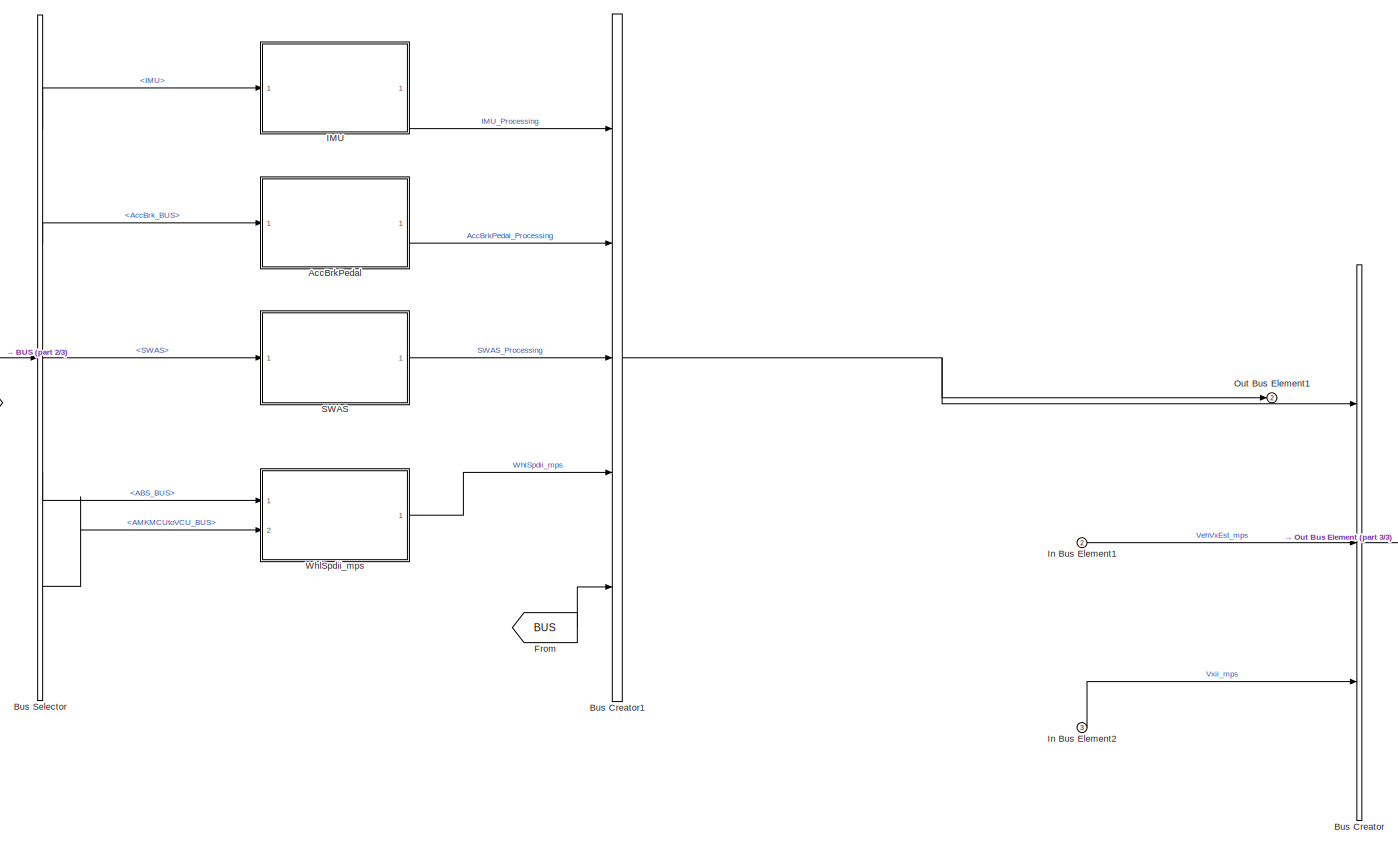
[diagram: root canvas - part 1/3, most of the canvas]
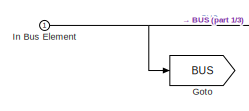
[diagram: root canvas - part 2/3, middle left region]
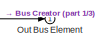
[diagram: root canvas - part 3/3, middle right region]
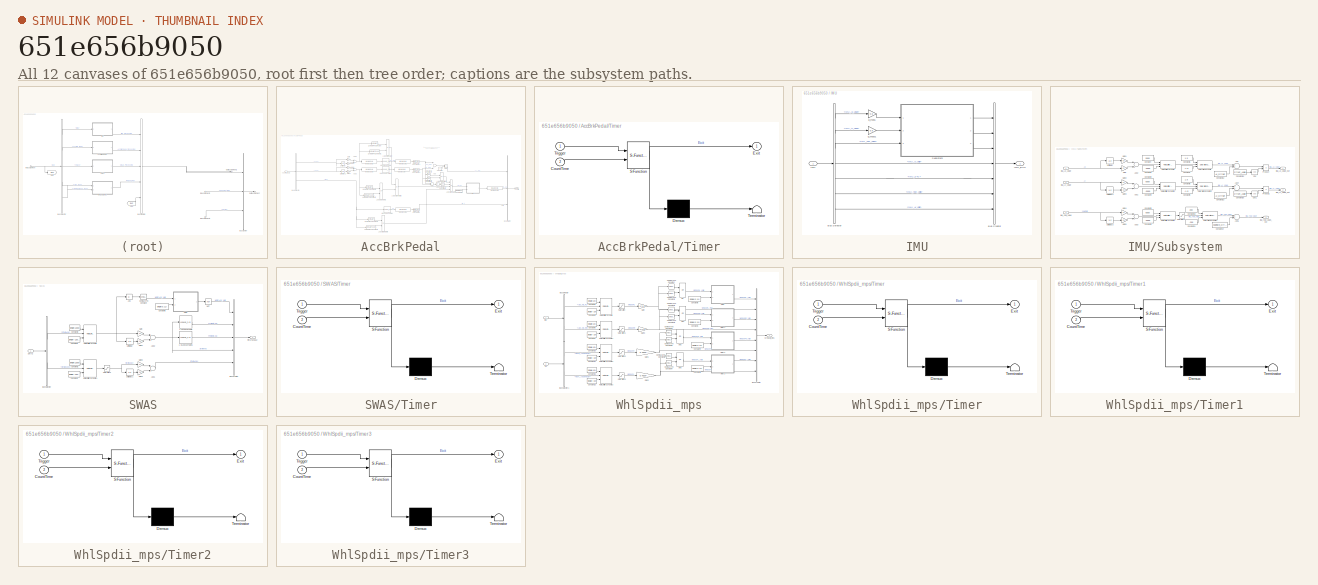
[diagram: thumbnail index - all 12 canvases of the model, root first then tree order]
MODEL slx_651e656b9050
KIND model
CONFIG AbsTol = auto
CONFIG EnableMultiTasking = off
CONFIG FixedStep = auto
CONFIG MaxStep = auto
CONFIG MinStep = auto
CONFIG RelTol = 1e-3
CONFIG SampleTimeConstraint = Unconstrained
CONFIG Solver = VariableStepAuto
CONFIG SolverName = VariableStepAuto
CONFIG StartTime = 0.0
CONFIG StopTime = 10.0
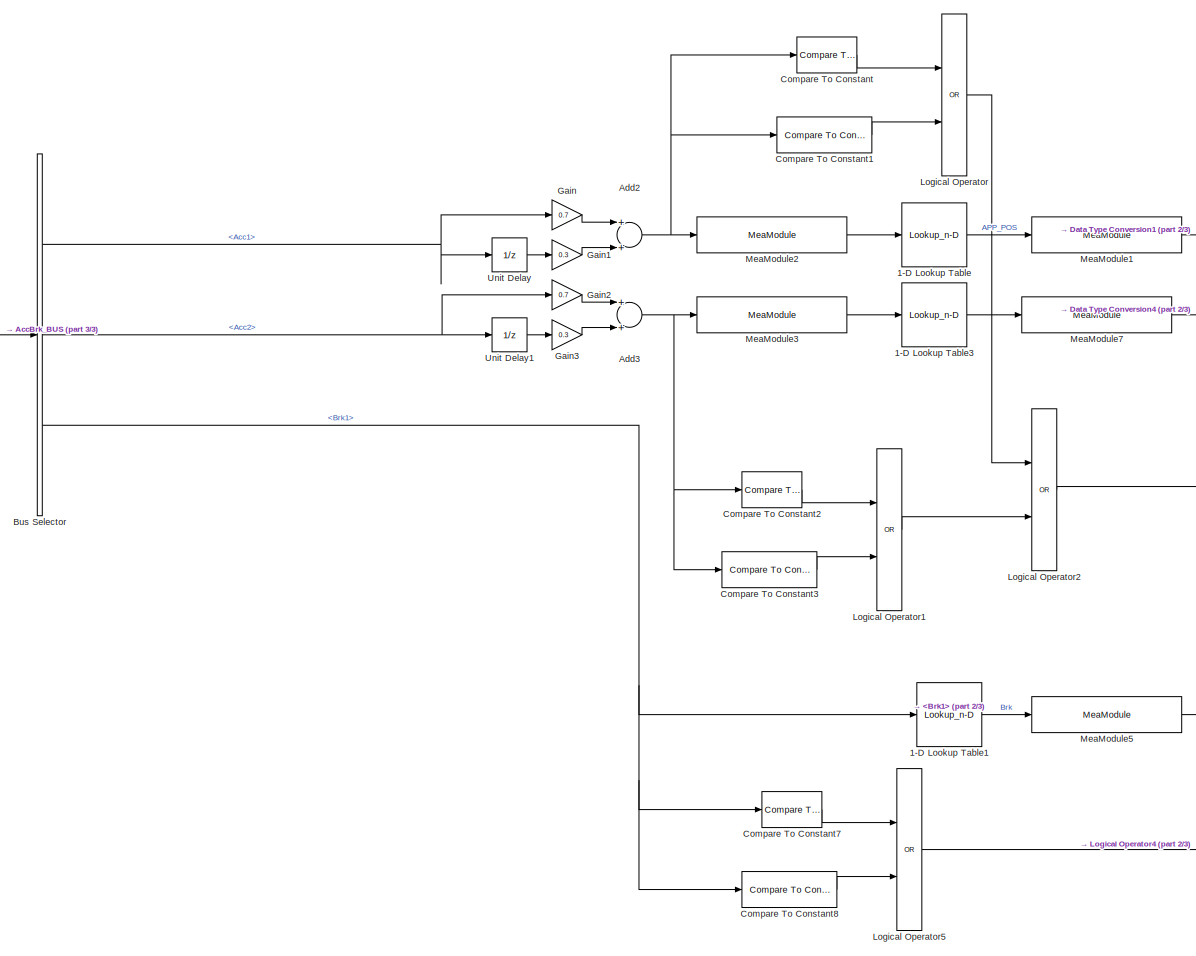
[diagram: AccBrkPedal - part 1/3, left side, full height]
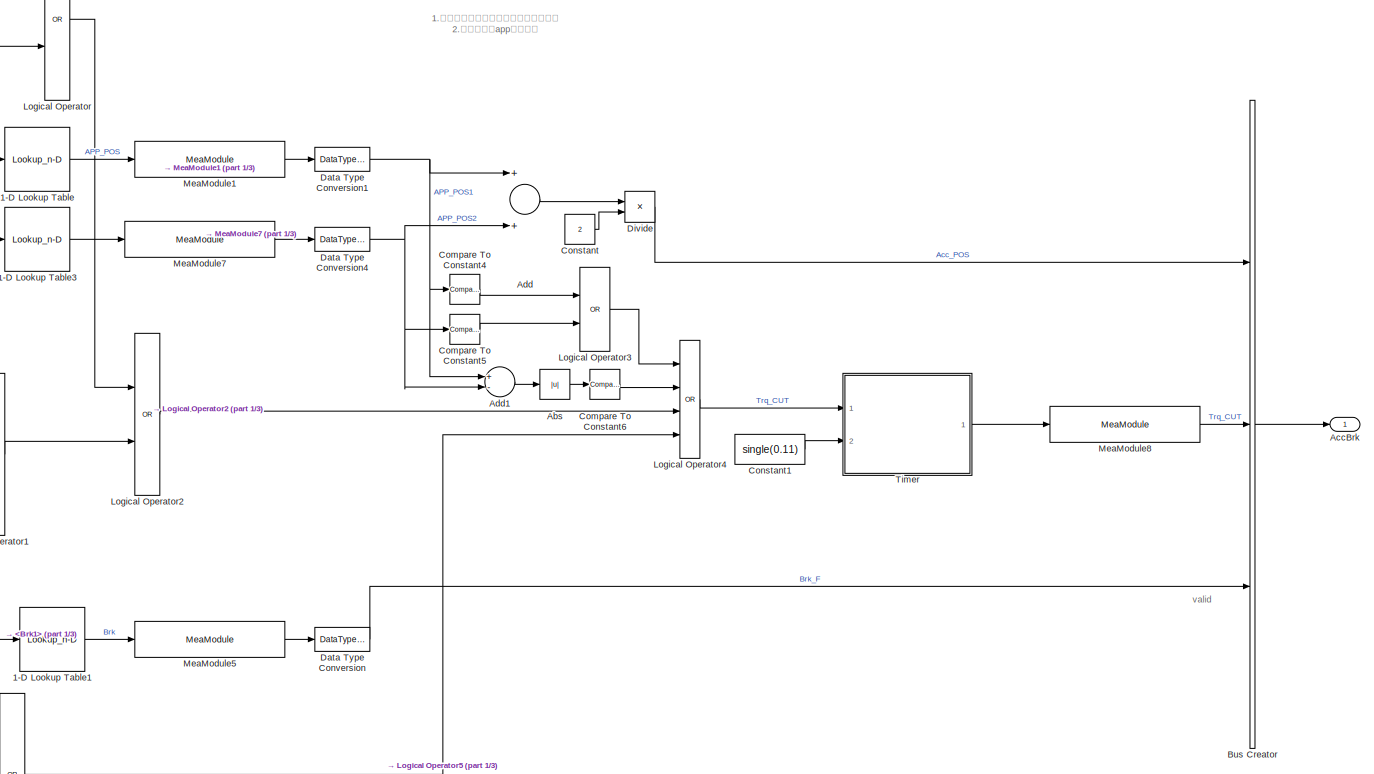
[diagram: AccBrkPedal - part 2/3, right side, full height]
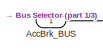
[diagram: AccBrkPedal - part 3/3, middle left region]
BLOCK [SubSystem] AccBrkPedal
  Ports = [1, 1]
  RequestExecContextInheritance = off
BLOCK [Lookup_n-D] AccBrkPedal/1-D Lookup Table
  BreakpointsForDimension1 = single([1330,1590]);
  BreakpointsForDimension1DataTypeStr = single
  ExtrapMethod = Clip
  InternalRulePriority = Speed
  NumberOfTableDimensions = 1
  Ports = [1, 1]
  RndMeth = Simplest
  Table = single([0,100]);
  TableDataTypeStr = single
BLOCK [Lookup_n-D] AccBrkPedal/1-D Lookup Table1
  BreakpointsForDimension1 = single([500,4500]);
  BreakpointsForDimension1DataTypeStr = single
  ExtrapMethod = Clip
  InternalRulePriority = Speed
  NumberOfTableDimensions = 1
  Ports = [1, 1]
  RndMeth = Simplest
  Table = single([0,10000]);
  TableDataTypeStr = single
BLOCK [Lookup_n-D] AccBrkPedal/1-D Lookup Table3
  BreakpointsForDimension1 = single([2324,2600]);
  BreakpointsForDimension1DataTypeStr = single
  ExtrapMethod = Clip
  InternalRulePriority = Speed
  NumberOfTableDimensions = 1
  Ports = [1, 1]
  RndMeth = Simplest
  Table = single([0,100]);
  TableDataTypeStr = single
BLOCK [Abs] AccBrkPedal/Abs
  SaturateOnIntegerOverflow = off
BLOCK [Outport] AccBrkPedal/AccBrk
  IconDisplay = Port number
  VectorParamsAs1DForOutWhenUnconnected = off
BLOCK [Inport] AccBrkPedal/AccBrk_BUS
  IconDisplay = Port number
BLOCK [Sum] AccBrkPedal/Add
  InputSameDT = off
  OutDataTypeStr = Inherit: Inherit via internal rule
  Ports = [2, 1]
  SaturateOnIntegerOverflow = off
BLOCK [Sum] AccBrkPedal/Add1
  InputSameDT = off
  Inputs = +-
  OutDataTypeStr = Inherit: Inherit via internal rule
  Ports = [2, 1]
  SaturateOnIntegerOverflow = off
BLOCK [Sum] AccBrkPedal/Add2
  InputSameDT = off
  OutDataTypeStr = Inherit: Inherit via internal rule
  Ports = [2, 1]
  SaturateOnIntegerOverflow = off
BLOCK [Sum] AccBrkPedal/Add3
  InputSameDT = off
  OutDataTypeStr = Inherit: Inherit via internal rule
  Ports = [2, 1]
  SaturateOnIntegerOverflow = off
BLOCK [BusCreator] AccBrkPedal/Bus Creator
  DisplayOption = bar
  InheritFromInputs = on
  Inputs = 3
  Ports = [3, 1]
BLOCK [BusSelector] AccBrkPedal/Bus Selector
  OutputAsBus = off
  OutputSignals = Acc1,Acc2,Brk1
  Ports = [1, 3]
BLOCK [Reference] AccBrkPedal/Compare To Constant  REF=simulink/Logic and Bit
Operations/Compare
To Constant
  Ports = [1, 1]
  SourceBlock = simulink/Logic and Bit\nOperations/Compare\nTo Constant
  SourceProductBaseCode = SL
  SourceProductName = Simulink
  SourceType = Compare To Constant
BLOCK [Reference] AccBrkPedal/Compare To Constant1  REF=simulink/Logic and Bit
Operations/Compare
To Constant
  Ports = [1, 1]
  SourceBlock = simulink/Logic and Bit\nOperations/Compare\nTo Constant
  SourceProductBaseCode = SL
  SourceProductName = Simulink
  SourceType = Compare To Constant
BLOCK [Reference] AccBrkPedal/Compare To Constant2  REF=simulink/Logic and Bit
Operations/Compare
To Constant
  Ports = [1, 1]
  SourceBlock = simulink/Logic and Bit\nOperations/Compare\nTo Constant
  SourceProductBaseCode = SL
  SourceProductName = Simulink
  SourceType = Compare To Constant
BLOCK [Reference] AccBrkPedal/Compare To Constant3  REF=simulink/Logic and Bit
Operations/Compare
To Constant
  Ports = [1, 1]
  SourceBlock = simulink/Logic and Bit\nOperations/Compare\nTo Constant
  SourceProductBaseCode = SL
  SourceProductName = Simulink
  SourceType = Compare To Constant
BLOCK [Reference] AccBrkPedal/Compare To Constant4  REF=simulink/Logic and Bit
Operations/Compare
To Constant
  Ports = [1, 1]
  SourceBlock = simulink/Logic and Bit\nOperations/Compare\nTo Constant
  SourceProductBaseCode = SL
  SourceProductName = Simulink
  SourceType = Compare To Constant
BLOCK [Reference] AccBrkPedal/Compare To Constant5  REF=simulink/Logic and Bit
Operations/Compare
To Constant
  Ports = [1, 1]
  SourceBlock = simulink/Logic and Bit\nOperations/Compare\nTo Constant
  SourceProductBaseCode = SL
  SourceProductName = Simulink
  SourceType = Compare To Constant
BLOCK [Reference] AccBrkPedal/Compare To Constant6  REF=simulink/Logic and Bit
Operations/Compare
To Constant
  Ports = [1, 1]
  SourceBlock = simulink/Logic and Bit\nOperations/Compare\nTo Constant
  SourceProductBaseCode = SL
  SourceProductName = Simulink
  SourceType = Compare To Constant
BLOCK [Reference] AccBrkPedal/Compare To Constant7  REF=simulink/Logic and Bit
Operations/Compare
To Constant
  Ports = [1, 1]
  SourceBlock = simulink/Logic and Bit\nOperations/Compare\nTo Constant
  SourceProductBaseCode = SL
  SourceProductName = Simulink
  SourceType = Compare To Constant
BLOCK [Reference] AccBrkPedal/Compare To Constant8  REF=simulink/Logic and Bit
Operations/Compare
To Constant
  Ports = [1, 1]
  SourceBlock = simulink/Logic and Bit\nOperations/Compare\nTo Constant
  SourceProductBaseCode = SL
  SourceProductName = Simulink
  SourceType = Compare To Constant
BLOCK [Constant] AccBrkPedal/Constant
  Value = 2
BLOCK [Constant] AccBrkPedal/Constant1
  Value = single(0.11)
BLOCK [DataTypeConversion] AccBrkPedal/Data Type Conversion
  OutDataTypeStr = single
  RndMeth = Floor
  SaturateOnIntegerOverflow = off
BLOCK [DataTypeConversion] AccBrkPedal/Data Type Conversion1
  OutDataTypeStr = single
  RndMeth = Floor
  SaturateOnIntegerOverflow = off
BLOCK [DataTypeConversion] AccBrkPedal/Data Type Conversion4
  OutDataTypeStr = single
  RndMeth = Floor
  SaturateOnIntegerOverflow = off
BLOCK [Product] AccBrkPedal/Divide
  InputSameDT = off
  Inputs = */
  OutDataTypeStr = single
  Ports = [2, 1]
  RndMeth = Floor
  SaturateOnIntegerOverflow = off
BLOCK [Gain] AccBrkPedal/Gain
  Gain = 0.7
  OutDataTypeStr = Inherit: Inherit via internal rule
  ParamDataTypeStr = Inherit: Inherit via internal rule
  SaturateOnIntegerOverflow = off
BLOCK [Gain] AccBrkPedal/Gain1
  Gain = 0.3
  OutDataTypeStr = Inherit: Inherit via internal rule
  ParamDataTypeStr = Inherit: Inherit via internal rule
  SaturateOnIntegerOverflow = off
BLOCK [Gain] AccBrkPedal/Gain2
  Gain = 0.7
  OutDataTypeStr = Inherit: Inherit via internal rule
  ParamDataTypeStr = Inherit: Inherit via internal rule
  SaturateOnIntegerOverflow = off
BLOCK [Gain] AccBrkPedal/Gain3
  Gain = 0.3
  OutDataTypeStr = Inherit: Inherit via internal rule
  ParamDataTypeStr = Inherit: Inherit via internal rule
  SaturateOnIntegerOverflow = off
BLOCK [Logic] AccBrkPedal/Logical Operator
  AllPortsSameDT = off
  Operator = OR
  OutDataTypeStr = boolean
  Ports = [2, 1]
BLOCK [Logic] AccBrkPedal/Logical Operator1
  AllPortsSameDT = off
  Operator = OR
  OutDataTypeStr = boolean
  Ports = [2, 1]
BLOCK [Logic] AccBrkPedal/Logical Operator2
  AllPortsSameDT = off
  Operator = OR
  OutDataTypeStr = boolean
  Ports = [2, 1]
BLOCK [Logic] AccBrkPedal/Logical Operator3
  AllPortsSameDT = off
  Operator = OR
  OutDataTypeStr = boolean
  Ports = [2, 1]
BLOCK [Logic] AccBrkPedal/Logical Operator4
  AllPortsSameDT = off
  Inputs = 4
  Operator = OR
  OutDataTypeStr = boolean
  Ports = [4, 1]
BLOCK [Logic] AccBrkPedal/Logical Operator5
  AllPortsSameDT = off
  Operator = OR
  OutDataTypeStr = boolean
  Ports = [2, 1]
BLOCK [Reference] AccBrkPedal/MeaModule1  REF=ec5744lib/RapidECU_U3/07Calibration/MeaModule
  Ports = [1, 1]
  SourceBlock = ec5744lib/RapidECU_U3/07Calibration/MeaModule
  SourceProductName = ECUCoder for MPC5744
  SourceType = Measurement Module
BLOCK [Reference] AccBrkPedal/MeaModule2  REF=ec5744lib/RapidECU_U3/07Calibration/MeaModule
  Ports = [1, 1]
  SourceBlock = ec5744lib/RapidECU_U3/07Calibration/MeaModule
  SourceProductName = ECUCoder for MPC5744
  SourceType = Measurement Module
BLOCK [Reference] AccBrkPedal/MeaModule3  REF=ec5744lib/RapidECU_U3/07Calibration/MeaModule
  Ports = [1, 1]
  SourceBlock = ec5744lib/RapidECU_U3/07Calibration/MeaModule
  SourceProductName = ECUCoder for MPC5744
  SourceType = Measurement Module
BLOCK [Reference] AccBrkPedal/MeaModule5  REF=ec5744lib/RapidECU_U3/07Calibration/MeaModule
  Ports = [1, 1]
  SourceBlock = ec5744lib/RapidECU_U3/07Calibration/MeaModule
  SourceProductName = ECUCoder for MPC5744
  SourceType = Measurement Module
BLOCK [Reference] AccBrkPedal/MeaModule7  REF=ec5744lib/RapidECU_U3/07Calibration/MeaModule
  Ports = [1, 1]
  SourceBlock = ec5744lib/RapidECU_U3/07Calibration/MeaModule
  SourceProductName = ECUCoder for MPC5744
  SourceType = Measurement Module
BLOCK [Reference] AccBrkPedal/MeaModule8  REF=ec5744lib/RapidECU_U3/07Calibration/MeaModule
  Ports = [1, 1]
  SourceBlock = ec5744lib/RapidECU_U3/07Calibration/MeaModule
  SourceProductName = ECUCoder for MPC5744
  SourceType = Measurement Module
BLOCK [SubSystem] AccBrkPedal/Timer
  ErrorFcn = Stateflow.Translate.translate
  PermitHierarchicalResolution = ExplicitOnly
  Ports = [2, 1]
  RequestExecContextInheritance = off
  SFBlockType = Chart
  TreatAsAtomicUnit = on
BLOCK [Demux] AccBrkPedal/Timer/ Demux 
  Outputs = 1
  Ports = [1, 1]
BLOCK [S-Function] AccBrkPedal/Timer/ SFunction 
  EnableBusSupport = on
  FunctionName = sf_sfun
  Parameters = 0
  PortCounts = [2 2]
  Ports = [2, 2]
  SFcnIsStateOwnerBlock = off
  SFunctionDeploymentMode = off
  Tag = Stateflow S-Function 3
BLOCK [Terminator] AccBrkPedal/Timer/ Terminator 
BLOCK [Inport] AccBrkPedal/Timer/CountTime
  IconDisplay = Port number
  Port = 2
BLOCK [Outport] AccBrkPedal/Timer/Exit
  IconDisplay = Port number
BLOCK [Inport] AccBrkPedal/Timer/Trigger
  IconDisplay = Port number
BLOCK [UnitDelay] AccBrkPedal/Unit Delay
  HasFrameUpgradeWarning = on
  SampleTime = -1
BLOCK [UnitDelay] AccBrkPedal/Unit Delay1
  HasFrameUpgradeWarning = on
  SampleTime = -1
BLOCK [BusCreator] Bus Creator
  DisplayOption = bar
  InheritFromInputs = on
  Inputs = 3
  Ports = [3, 1]
BLOCK [BusCreator] Bus Creator1
  DisplayOption = bar
  InheritFromInputs = on
  Inputs = 5
  Ports = [5, 1]
BLOCK [BusSelector] Bus Selector
  OutputAsBus = off
  OutputSignals = IMU,AccBrk_BUS,SWAS,ABS_BUS,AMKMCUtoVCU_BUS
  Ports = [1, 5]
BLOCK [From] From
  GotoTag = BUS
BLOCK [Goto] Goto
  GotoTag = BUS
BLOCK [SubSystem] IMU
  Ports = [1, 1]
  RequestExecContextInheritance = off
BLOCK [BusCreator] IMU/Bus Creator
  DisplayOption = bar
  InheritFromInputs = on
  Inputs = 7
  Ports = [7, 1]
BLOCK [BusSelector] IMU/Bus Selector
  OutputAsBus = off
  OutputSignals = IMU_Ax_Value,IMU_Ay_Value,IMU_Yaw_Value,IMU_Ay_Valid,IMU_DTC,IMU_Yaw_Valid,IMU_Ax_Valid
  Ports = [1, 7]
BLOCK [Inport] IMU/IMU
  IconDisplay = Port number
BLOCK [Outport] IMU/IMU_BUS
  IconDisplay = Port number
  VectorParamsAs1DForOutWhenUnconnected = off
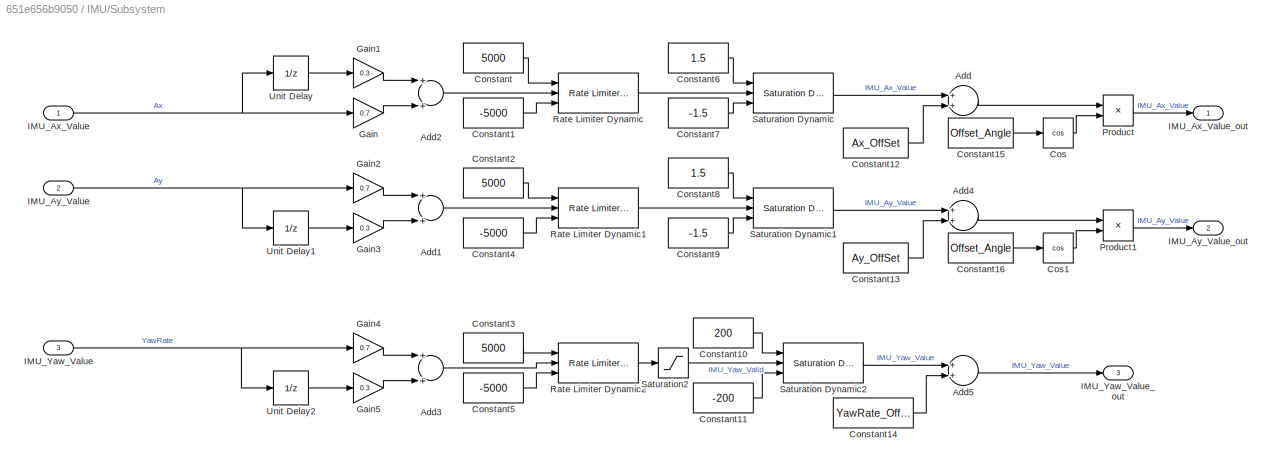
BLOCK [SubSystem] IMU/Subsystem
  Ports = [3, 3]
  RequestExecContextInheritance = off
BLOCK [Sum] IMU/Subsystem/Add
  InputSameDT = off
  OutDataTypeStr = Inherit: Inherit via internal rule
  Ports = [2, 1]
  SaturateOnIntegerOverflow = off
BLOCK [Sum] IMU/Subsystem/Add1
  InputSameDT = off
  OutDataTypeStr = Inherit: Inherit via internal rule
  Ports = [2, 1]
  SaturateOnIntegerOverflow = off
BLOCK [Sum] IMU/Subsystem/Add2
  InputSameDT = off
  OutDataTypeStr = Inherit: Inherit via internal rule
  Ports = [2, 1]
  SaturateOnIntegerOverflow = off
BLOCK [Sum] IMU/Subsystem/Add3
  InputSameDT = off
  OutDataTypeStr = Inherit: Inherit via internal rule
  Ports = [2, 1]
  SaturateOnIntegerOverflow = off
BLOCK [Sum] IMU/Subsystem/Add4
  InputSameDT = off
  OutDataTypeStr = Inherit: Inherit via internal rule
  Ports = [2, 1]
  SaturateOnIntegerOverflow = off
BLOCK [Sum] IMU/Subsystem/Add5
  InputSameDT = off
  OutDataTypeStr = Inherit: Inherit via internal rule
  Ports = [2, 1]
  SaturateOnIntegerOverflow = off
BLOCK [Constant] IMU/Subsystem/Constant
  Value = 5000
BLOCK [Constant] IMU/Subsystem/Constant1
  Value = -5000
BLOCK [Constant] IMU/Subsystem/Constant10
  SampleTime = -1
  Value = 200
BLOCK [Constant] IMU/Subsystem/Constant11
  SampleTime = -1
  Value = -200
BLOCK [Constant] IMU/Subsystem/Constant12
  Value = Ax_OffSet
BLOCK [Constant] IMU/Subsystem/Constant13
  Value = Ay_OffSet
BLOCK [Constant] IMU/Subsystem/Constant14
  Value = YawRate_OffSet
BLOCK [Constant] IMU/Subsystem/Constant15
  Value = Offset_Angle
BLOCK [Constant] IMU/Subsystem/Constant16
  Value = Offset_Angle
BLOCK [Constant] IMU/Subsystem/Constant2
  Value = 5000
BLOCK [Constant] IMU/Subsystem/Constant3
  Value = 5000
BLOCK [Constant] IMU/Subsystem/Constant4
  Value = -5000
BLOCK [Constant] IMU/Subsystem/Constant5
  Value = -5000
BLOCK [Constant] IMU/Subsystem/Constant6
  SampleTime = -1
  Value = 1.5
BLOCK [Constant] IMU/Subsystem/Constant7
  SampleTime = -1
  Value = -1.5
BLOCK [Constant] IMU/Subsystem/Constant8
  SampleTime = -1
  Value = 1.5
BLOCK [Constant] IMU/Subsystem/Constant9
  SampleTime = -1
  Value = -1.5
BLOCK [Trigonometry] IMU/Subsystem/Cos
  Operator = cos
  Ports = [1, 1]
BLOCK [Trigonometry] IMU/Subsystem/Cos1
  Operator = cos
  Ports = [1, 1]
BLOCK [Gain] IMU/Subsystem/Gain
  Gain = 0.7
  OutDataTypeStr = Inherit: Inherit via internal rule
  ParamDataTypeStr = Inherit: Inherit via internal rule
  SaturateOnIntegerOverflow = off
BLOCK [Gain] IMU/Subsystem/Gain1
  Gain = 0.3
  OutDataTypeStr = Inherit: Inherit via internal rule
  ParamDataTypeStr = Inherit: Inherit via internal rule
  SaturateOnIntegerOverflow = off
BLOCK [Gain] IMU/Subsystem/Gain2
  Gain = 0.7
  OutDataTypeStr = Inherit: Inherit via internal rule
  ParamDataTypeStr = Inherit: Inherit via internal rule
  SaturateOnIntegerOverflow = off
BLOCK [Gain] IMU/Subsystem/Gain3
  Gain = 0.3
  OutDataTypeStr = Inherit: Inherit via internal rule
  ParamDataTypeStr = Inherit: Inherit via internal rule
  SaturateOnIntegerOverflow = off
BLOCK [Gain] IMU/Subsystem/Gain4
  Gain = 0.7
  OutDataTypeStr = Inherit: Inherit via internal rule
  ParamDataTypeStr = Inherit: Inherit via internal rule
  SaturateOnIntegerOverflow = off
BLOCK [Gain] IMU/Subsystem/Gain5
  Gain = 0.3
  OutDataTypeStr = Inherit: Inherit via internal rule
  ParamDataTypeStr = Inherit: Inherit via internal rule
  SaturateOnIntegerOverflow = off
BLOCK [Inport] IMU/Subsystem/IMU_Ax_Value
  IconDisplay = Port number
BLOCK [Outport] IMU/Subsystem/IMU_Ax_Value_out
  IconDisplay = Port number
  VectorParamsAs1DForOutWhenUnconnected = off
BLOCK [Inport] IMU/Subsystem/IMU_Ay_Value
  IconDisplay = Port number
  Port = 2
BLOCK [Outport] IMU/Subsystem/IMU_Ay_Value_out
  IconDisplay = Port number
  Port = 2
  VectorParamsAs1DForOutWhenUnconnected = off
BLOCK [Inport] IMU/Subsystem/IMU_Yaw_Value
  IconDisplay = Port number
  Port = 3
BLOCK [Outport] IMU/Subsystem/IMU_Yaw_Value_out
  IconDisplay = Port number
  Port = 3
  VectorParamsAs1DForOutWhenUnconnected = off
BLOCK [Product] IMU/Subsystem/Product
  InputSameDT = off
  OutDataTypeStr = Inherit: Inherit via internal rule
  Ports = [2, 1]
  RndMeth = Floor
  SaturateOnIntegerOverflow = off
BLOCK [Product] IMU/Subsystem/Product1
  InputSameDT = off
  OutDataTypeStr = Inherit: Inherit via internal rule
  Ports = [2, 1]
  RndMeth = Floor
  SaturateOnIntegerOverflow = off
BLOCK [Reference] IMU/Subsystem/Rate Limiter Dynamic  REF=simulink/Discontinuities/Rate Limiter
Dynamic
  Ports = [3, 1]
  SourceBlock = simulink/Discontinuities/Rate Limiter\nDynamic
  SourceProductBaseCode = SL
  SourceProductName = Simulink
  SourceType = Rate Limiter Dynamic
BLOCK [Reference] IMU/Subsystem/Rate Limiter Dynamic1  REF=simulink/Discontinuities/Rate Limiter
Dynamic
  Ports = [3, 1]
  SourceBlock = simulink/Discontinuities/Rate Limiter\nDynamic
  SourceProductBaseCode = SL
  SourceProductName = Simulink
  SourceType = Rate Limiter Dynamic
BLOCK [Reference] IMU/Subsystem/Rate Limiter Dynamic2  REF=simulink/Discontinuities/Rate Limiter
Dynamic
  Ports = [3, 1]
  SourceBlock = simulink/Discontinuities/Rate Limiter\nDynamic
  SourceProductBaseCode = SL
  SourceProductName = Simulink
  SourceType = Rate Limiter Dynamic
BLOCK [Reference] IMU/Subsystem/Saturation Dynamic  REF=simulink/Discontinuities/Saturation
Dynamic
  Ports = [3, 1]
  SourceBlock = simulink/Discontinuities/Saturation\nDynamic
  SourceProductBaseCode = SL
  SourceProductName = Simulink
  SourceType = Saturation Dynamic
BLOCK [Reference] IMU/Subsystem/Saturation Dynamic1  REF=simulink/Discontinuities/Saturation
Dynamic
  Ports = [3, 1]
  SourceBlock = simulink/Discontinuities/Saturation\nDynamic
  SourceProductBaseCode = SL
  SourceProductName = Simulink
  SourceType = Saturation Dynamic
BLOCK [Reference] IMU/Subsystem/Saturation Dynamic2  REF=simulink/Discontinuities/Saturation
Dynamic
  Ports = [3, 1]
  SourceBlock = simulink/Discontinuities/Saturation\nDynamic
  SourceProductBaseCode = SL
  SourceProductName = Simulink
  SourceType = Saturation Dynamic
BLOCK [Saturate] IMU/Subsystem/Saturation2
  InputPortMap = u0
  LowerLimit = -180
  Ports = [1, 1]
  UpperLimit = 180
BLOCK [UnitDelay] IMU/Subsystem/Unit Delay
  HasFrameUpgradeWarning = on
  SampleTime = -1
BLOCK [UnitDelay] IMU/Subsystem/Unit Delay1
  HasFrameUpgradeWarning = on
  SampleTime = -1
BLOCK [UnitDelay] IMU/Subsystem/Unit Delay2
  HasFrameUpgradeWarning = on
  SampleTime = -1
BLOCK [Gain] IMU/g_mpss
  Gain = 9.8
  OutDataTypeStr = Inherit: Inherit via internal rule
  ParamDataTypeStr = Inherit: Inherit via internal rule
  SaturateOnIntegerOverflow = off
BLOCK [Gain] IMU/g_mpss1
  Gain = 9.8
  OutDataTypeStr = Inherit: Inherit via internal rule
  ParamDataTypeStr = Inherit: Inherit via internal rule
  SaturateOnIntegerOverflow = off
BLOCK [Inport] In Bus Element
  IconDisplay = Port number
BLOCK [Inport] In Bus Element1
  IconDisplay = Port number
  Port = 2
BLOCK [Inport] In Bus Element2
  IconDisplay = Port number
  Port = 3
BLOCK [Outport] Out Bus Element
  IconDisplay = Port number
BLOCK [Outport] Out Bus Element1
  IconDisplay = Port number
  Port = 2
BLOCK [SubSystem] SWAS
  Ports = [1, 1]
  RequestExecContextInheritance = off
BLOCK [Lookup_n-D] SWAS/1-D Lookup Table
  BreakpointsForDimension1 = single([-119.993\n-109.997\n-100\n-90.0034\n-80.0067\n-69.9933\n-59.9966\n-50\n-40.0034\n-30.0067\n-19.9933\n-9.99664\n0\n9.99664\n19.9933\n30.0067\n40.0034\n50\n59.9966\n69.9933\n80.0067\n90.0034\n100\n109.997\n]);
  InternalRulePriority = Speed
  NumberOfTableDimensions = 1
  Ports = [1, 1]
  RndMeth = Simplest
  Table = single([-26.072928\n-23.62248\n-20.834568\n-18.002448\n-15.197904\n-12.620232\n-10.131048\n-8.139672\n-6.2976672\n-4.605012\n-3.0893688\n-1.4907528\n-0.07467624\n1.40778\n2.9621448\n4.7211768\n6.5521152\n8.737056\n10.944144\n13.743144\n17.25012\n20.375424\n24.070536\n27.505584\n]);
BLOCK [Lookup_n-D] SWAS/1-D Lookup Table1
  BreakpointsForDimension1 = single([-119.995\n-109.993\n-99.9916\n-90.0067\n-80.005\n-70.0034\n-60.0017\n-50\n-39.9983\n-29.9966\n-19.995\n-9.99328\n0.00840477\n9.99328\n19.995\n29.9966\n39.9983\n50\n60.0017\n70.0034\n80.005\n90.0067\n100.008\n109.993\n]);
  InternalRulePriority = Speed
  NumberOfTableDimensions = 1
  Ports = [1, 1]
  RndMeth = Simplest
  Table = single([-26.816256\n-23.524848\n-19.851048\n-16.282584\n-13.40676\n-10.314792\n-7.65504\n-5.3554968\n-3.4548912\n-1.5044184\n0.02493504\n1.4379192\n2.8675296\n4.2638976\n5.76\n7.35588\n9.101304\n11.04624\n12.94128\n15.35724\n18.244152\n20.937168\n23.630112\n26.306496\n]);
BLOCK [Abs] SWAS/Abs
  SaturateOnIntegerOverflow = off
BLOCK [Sum] SWAS/Add1
  InputSameDT = off
  OutDataTypeStr = Inherit: Inherit via internal rule
  Ports = [2, 1]
  SaturateOnIntegerOverflow = off
BLOCK [Sum] SWAS/Add2
  InputSameDT = off
  OutDataTypeStr = Inherit: Inherit via internal rule
  Ports = [2, 1]
  SaturateOnIntegerOverflow = off
BLOCK [BusCreator] SWAS/Bus Creator
  DisplayOption = bar
  InheritFromInputs = on
  Inputs = 5
  Ports = [5, 1]
BLOCK [BusSelector] SWAS/Bus Selector
  OutputAsBus = off
  OutputSignals = StrWhlAng,StrWhlAngV
  Ports = [1, 2]
BLOCK [Reference] SWAS/Compare To Constant  REF=simulink/Logic and Bit
Operations/Compare
To Constant
  Ports = [1, 1]
  SourceBlock = simulink/Logic and Bit\nOperations/Compare\nTo Constant
  SourceProductBaseCode = SL
  SourceProductName = Simulink
  SourceType = Compare To Constant
BLOCK [Constant] SWAS/Constant1
  Value = single(1200)
BLOCK [Constant] SWAS/Constant2
  Value = single(1200)
BLOCK [Constant] SWAS/Constant3
  Value = single(-1200)
BLOCK [Constant] SWAS/Constant4
  Value = single(-1200)
BLOCK [Constant] SWAS/Constant5
  Value = single(0.11)
BLOCK [Gain] SWAS/Gain
  Gain = 0.7
  OutDataTypeStr = Inherit: Inherit via internal rule
  ParamDataTypeStr = Inherit: Inherit via internal rule
  SaturateOnIntegerOverflow = off
BLOCK [Gain] SWAS/Gain1
  Gain = 0.3
  OutDataTypeStr = Inherit: Inherit via internal rule
  ParamDataTypeStr = Inherit: Inherit via internal rule
  SaturateOnIntegerOverflow = off
BLOCK [Gain] SWAS/Gain2
  Gain = 0.7
  OutDataTypeStr = Inherit: Inherit via internal rule
  ParamDataTypeStr = Inherit: Inherit via internal rule
  SaturateOnIntegerOverflow = off
BLOCK [Gain] SWAS/Gain3
  Gain = 0.3
  OutDataTypeStr = Inherit: Inherit via internal rule
  ParamDataTypeStr = Inherit: Inherit via internal rule
  SaturateOnIntegerOverflow = off
BLOCK [Logic] SWAS/NOT
  AllPortsSameDT = off
  Operator = NOT
  OutDataTypeStr = boolean
  Ports = [1, 1]
BLOCK [Reference] SWAS/Rate Limiter Dynamic  REF=simulink/Discontinuities/Rate Limiter
Dynamic
  Ports = [3, 1]
  SourceBlock = simulink/Discontinuities/Rate Limiter\nDynamic
  SourceProductBaseCode = SL
  SourceProductName = Simulink
  SourceType = Rate Limiter Dynamic
BLOCK [Reference] SWAS/Rate Limiter Dynamic1  REF=simulink/Discontinuities/Rate Limiter
Dynamic
  Ports = [3, 1]
  SourceBlock = simulink/Discontinuities/Rate Limiter\nDynamic
  SourceProductBaseCode = SL
  SourceProductName = Simulink
  SourceType = Rate Limiter Dynamic
BLOCK [Inport] SWAS/SWAS
  IconDisplay = Port number
BLOCK [Saturate] SWAS/Saturation1
  InputPortMap = u0
  LowerLimit = 0
  Ports = [1, 1]
  UpperLimit = 1200
BLOCK [Outport] SWAS/StrWhlAng&V
  IconDisplay = Port number
  VectorParamsAs1DForOutWhenUnconnected = off
BLOCK [SubSystem] SWAS/Timer
  ErrorFcn = Stateflow.Translate.translate
  PermitHierarchicalResolution = ExplicitOnly
  Ports = [2, 1]
  RequestExecContextInheritance = off
  SFBlockType = Chart
  TreatAsAtomicUnit = on
BLOCK [Demux] SWAS/Timer/ Demux 
  Outputs = 1
  Ports = [1, 1]
BLOCK [S-Function] SWAS/Timer/ SFunction 
  EnableBusSupport = on
  FunctionName = sf_sfun
  Parameters = 0
  PortCounts = [2 2]
  Ports = [2, 2]
  SFcnIsStateOwnerBlock = off
  SFunctionDeploymentMode = off
  Tag = Stateflow S-Function 8
BLOCK [Terminator] SWAS/Timer/ Terminator 
BLOCK [Inport] SWAS/Timer/CountTime
  IconDisplay = Port number
  Port = 2
BLOCK [Outport] SWAS/Timer/Exit
  IconDisplay = Port number
BLOCK [Inport] SWAS/Timer/Trigger
  IconDisplay = Port number
BLOCK [UnitDelay] SWAS/Unit Delay
  HasFrameUpgradeWarning = on
  SampleTime = -1
BLOCK [UnitDelay] SWAS/Unit Delay1
  HasFrameUpgradeWarning = on
  SampleTime = -1
BLOCK [SubSystem] WhlSpdii_mps
  Ports = [2, 1]
  RequestExecContextInheritance = off
BLOCK [BusCreator] WhlSpdii_mps/Bus Creator
  DisplayOption = bar
  InheritFromInputs = on
  Inputs = 8
  Ports = [8, 1]
BLOCK [BusSelector] WhlSpdii_mps/Bus Selector
  OutputAsBus = off
  OutputSignals = ABS_WS_RL,ABS_WS_RR
  Ports = [1, 2]
BLOCK [BusSelector] WhlSpdii_mps/Bus Selector1
  OutputAsBus = off
  OutputSignals = FRAMKMCUtoVCU1.MCFR_ActualVelocity,FLAMKMCUtoVCU1.MCFL_ActualVelocity
  Ports = [1, 2]
BLOCK [Reference] WhlSpdii_mps/Compare To Constant  REF=simulink/Logic and Bit
Operations/Compare
To Constant
  Ports = [1, 1]
  SourceBlock = simulink/Logic and Bit\nOperations/Compare\nTo Constant
  SourceProductBaseCode = SL
  SourceProductName = Simulink
  SourceType = Compare To Constant
BLOCK [Reference] WhlSpdii_mps/Compare To Constant1  REF=simulink/Logic and Bit
Operations/Compare
To Constant
  Ports = [1, 1]
  SourceBlock = simulink/Logic and Bit\nOperations/Compare\nTo Constant
  SourceProductBaseCode = SL
  SourceProductName = Simulink
  SourceType = Compare To Constant
BLOCK [Reference] WhlSpdii_mps/Compare To Constant2  REF=simulink/Logic and Bit
Operations/Compare
To Constant
  Ports = [1, 1]
  SourceBlock = simulink/Logic and Bit\nOperations/Compare\nTo Constant
  SourceProductBaseCode = SL
  SourceProductName = Simulink
  SourceType = Compare To Constant
BLOCK [Reference] WhlSpdii_mps/Compare To Constant3  REF=simulink/Logic and Bit
Operations/Compare
To Constant
  Ports = [1, 1]
  SourceBlock = simulink/Logic and Bit\nOperations/Compare\nTo Constant
  SourceProductBaseCode = SL
  SourceProductName = Simulink
  SourceType = Compare To Constant
BLOCK [Reference] WhlSpdii_mps/Compare To Constant4  REF=simulink/Logic and Bit
Operations/Compare
To Constant
  Ports = [1, 1]
  SourceBlock = simulink/Logic and Bit\nOperations/Compare\nTo Constant
  SourceProductBaseCode = SL
  SourceProductName = Simulink
  SourceType = Compare To Constant
BLOCK [Reference] WhlSpdii_mps/Compare To Constant5  REF=simulink/Logic and Bit
Operations/Compare
To Constant
  Ports = [1, 1]
  SourceBlock = simulink/Logic and Bit\nOperations/Compare\nTo Constant
  SourceProductBaseCode = SL
  SourceProductName = Simulink
  SourceType = Compare To Constant
BLOCK [Reference] WhlSpdii_mps/Compare To Constant6  REF=simulink/Logic and Bit
Operations/Compare
To Constant
  Ports = [1, 1]
  SourceBlock = simulink/Logic and Bit\nOperations/Compare\nTo Constant
  SourceProductBaseCode = SL
  SourceProductName = Simulink
  SourceType = Compare To Constant
BLOCK [Reference] WhlSpdii_mps/Compare To Constant7  REF=simulink/Logic and Bit
Operations/Compare
To Constant
  Ports = [1, 1]
  SourceBlock = simulink/Logic and Bit\nOperations/Compare\nTo Constant
  SourceProductBaseCode = SL
  SourceProductName = Simulink
  SourceType = Compare To Constant
BLOCK [Constant] WhlSpdii_mps/Constant1
  Value = single(0.11)
BLOCK [Constant] WhlSpdii_mps/Constant10
  Value = single(10)
BLOCK [Constant] WhlSpdii_mps/Constant11
  Value = single(-10)
BLOCK [Constant] WhlSpdii_mps/Constant12
  Value = single(10)
BLOCK [Constant] WhlSpdii_mps/Constant13
  Value = single(-10)
BLOCK [Constant] WhlSpdii_mps/Constant2
  Value = single(10)
BLOCK [Constant] WhlSpdii_mps/Constant3
  Value = single(-10)
BLOCK [Constant] WhlSpdii_mps/Constant4
  Value = single(0.11)
BLOCK [Constant] WhlSpdii_mps/Constant5
  Value = single(0.11)
BLOCK [Constant] WhlSpdii_mps/Constant6
  Value = single(10)
BLOCK [Constant] WhlSpdii_mps/Constant7
  Value = single(-10)
BLOCK [Constant] WhlSpdii_mps/Constant8
  Value = single(0.11)
BLOCK [Gain] WhlSpdii_mps/Gain
  Gain = 1/3.6
  OutDataTypeStr = Inherit: Inherit via internal rule
  ParamDataTypeStr = Inherit: Inherit via internal rule
  SaturateOnIntegerOverflow = off
BLOCK [Gain] WhlSpdii_mps/Gain1
  Gain = 0.4826*3.14/11.3
  OutDataTypeStr = Inherit: Inherit via internal rule
  ParamDataTypeStr = Inherit: Inherit via internal rule
  SaturateOnIntegerOverflow = off
BLOCK [Gain] WhlSpdii_mps/Gain2
  Gain = 0.4826*3.14/11.3
  OutDataTypeStr = Inherit: Inherit via internal rule
  ParamDataTypeStr = Inherit: Inherit via internal rule
  SaturateOnIntegerOverflow = off
BLOCK [Gain] WhlSpdii_mps/Gain3
  Gain = 1/3.6
  OutDataTypeStr = Inherit: Inherit via internal rule
  ParamDataTypeStr = Inherit: Inherit via internal rule
  SaturateOnIntegerOverflow = off
BLOCK [Inport] WhlSpdii_mps/IMU
  IconDisplay = Port number
BLOCK [Inport] WhlSpdii_mps/In2
  IconDisplay = Port number
  Port = 2
BLOCK [Logic] WhlSpdii_mps/OR
  AllPortsSameDT = off
  Operator = OR
  OutDataTypeStr = boolean
  Ports = [2, 1]
BLOCK [Logic] WhlSpdii_mps/OR1
  AllPortsSameDT = off
  Operator = OR
  OutDataTypeStr = boolean
  Ports = [2, 1]
BLOCK [Logic] WhlSpdii_mps/OR2
  AllPortsSameDT = off
  Operator = OR
  OutDataTypeStr = boolean
  Ports = [2, 1]
BLOCK [Logic] WhlSpdii_mps/OR3
  AllPortsSameDT = off
  Operator = OR
  OutDataTypeStr = boolean
  Ports = [2, 1]
BLOCK [Reference] WhlSpdii_mps/Rate Limiter Dynamic  REF=simulink/Discontinuities/Rate Limiter
Dynamic
  Ports = [3, 1]
  SourceBlock = simulink/Discontinuities/Rate Limiter\nDynamic
  SourceProductBaseCode = SL
  SourceProductName = Simulink
  SourceType = Rate Limiter Dynamic
BLOCK [Reference] WhlSpdii_mps/Rate Limiter Dynamic1  REF=simulink/Discontinuities/Rate Limiter
Dynamic
  Ports = [3, 1]
  SourceBlock = simulink/Discontinuities/Rate Limiter\nDynamic
  SourceProductBaseCode = SL
  SourceProductName = Simulink
  SourceType = Rate Limiter Dynamic
BLOCK [Reference] WhlSpdii_mps/Rate Limiter Dynamic2  REF=simulink/Discontinuities/Rate Limiter
Dynamic
  Ports = [3, 1]
  SourceBlock = simulink/Discontinuities/Rate Limiter\nDynamic
  SourceProductBaseCode = SL
  SourceProductName = Simulink
  SourceType = Rate Limiter Dynamic
BLOCK [Reference] WhlSpdii_mps/Rate Limiter Dynamic3  REF=simulink/Discontinuities/Rate Limiter
Dynamic
  Ports = [3, 1]
  SourceBlock = simulink/Discontinuities/Rate Limiter\nDynamic
  SourceProductBaseCode = SL
  SourceProductName = Simulink
  SourceType = Rate Limiter Dynamic
BLOCK [Saturate] WhlSpdii_mps/Saturation
  InputPortMap = u0
  LowerLimit = 0
  Ports = [1, 1]
  UpperLimit = 30
BLOCK [Saturate] WhlSpdii_mps/Saturation1
  InputPortMap = u0
  LowerLimit = 0
  Ports = [1, 1]
  UpperLimit = 30
BLOCK [Saturate] WhlSpdii_mps/Saturation2
  InputPortMap = u0
  LowerLimit = 0
  Ports = [1, 1]
  UpperLimit = 30
BLOCK [Saturate] WhlSpdii_mps/Saturation3
  InputPortMap = u0
  LowerLimit = 0
  Ports = [1, 1]
  UpperLimit = 30
BLOCK [SubSystem] WhlSpdii_mps/Timer
  ErrorFcn = Stateflow.Translate.translate
  PermitHierarchicalResolution = ExplicitOnly
  Ports = [2, 1]
  RequestExecContextInheritance = off
  SFBlockType = Chart
  TreatAsAtomicUnit = on
BLOCK [Demux] WhlSpdii_mps/Timer/ Demux 
  Outputs = 1
  Ports = [1, 1]
BLOCK [S-Function] WhlSpdii_mps/Timer/ SFunction 
  EnableBusSupport = on
  FunctionName = sf_sfun
  Parameters = 0
  PortCounts = [2 2]
  Ports = [2, 2]
  SFcnIsStateOwnerBlock = off
  SFunctionDeploymentMode = off
  Tag = Stateflow S-Function 9
BLOCK [Terminator] WhlSpdii_mps/Timer/ Terminator 
BLOCK [Inport] WhlSpdii_mps/Timer/CountTime
  IconDisplay = Port number
  Port = 2
BLOCK [Outport] WhlSpdii_mps/Timer/Exit
  IconDisplay = Port number
BLOCK [Inport] WhlSpdii_mps/Timer/Trigger
  IconDisplay = Port number
BLOCK [SubSystem] WhlSpdii_mps/Timer1
  ErrorFcn = Stateflow.Translate.translate
  PermitHierarchicalResolution = ExplicitOnly
  Ports = [2, 1]
  RequestExecContextInheritance = off
  SFBlockType = Chart
  TreatAsAtomicUnit = on
BLOCK [Demux] WhlSpdii_mps/Timer1/ Demux 
  Outputs = 1
  Ports = [1, 1]
BLOCK [S-Function] WhlSpdii_mps/Timer1/ SFunction 
  EnableBusSupport = on
  FunctionName = sf_sfun
  Parameters = 0
  PortCounts = [2 2]
  Ports = [2, 2]
  SFcnIsStateOwnerBlock = off
  SFunctionDeploymentMode = off
  Tag = Stateflow S-Function 10
BLOCK [Terminator] WhlSpdii_mps/Timer1/ Terminator 
BLOCK [Inport] WhlSpdii_mps/Timer1/CountTime
  IconDisplay = Port number
  Port = 2
BLOCK [Outport] WhlSpdii_mps/Timer1/Exit
  IconDisplay = Port number
BLOCK [Inport] WhlSpdii_mps/Timer1/Trigger
  IconDisplay = Port number
BLOCK [SubSystem] WhlSpdii_mps/Timer2
  ErrorFcn = Stateflow.Translate.translate
  PermitHierarchicalResolution = ExplicitOnly
  Ports = [2, 1]
  RequestExecContextInheritance = off
  SFBlockType = Chart
  TreatAsAtomicUnit = on
BLOCK [Demux] WhlSpdii_mps/Timer2/ Demux 
  Outputs = 1
  Ports = [1, 1]
BLOCK [S-Function] WhlSpdii_mps/Timer2/ SFunction 
  EnableBusSupport = on
  FunctionName = sf_sfun
  Parameters = 0
  PortCounts = [2 2]
  Ports = [2, 2]
  SFcnIsStateOwnerBlock = off
  SFunctionDeploymentMode = off
  Tag = Stateflow S-Function 11
BLOCK [Terminator] WhlSpdii_mps/Timer2/ Terminator 
BLOCK [Inport] WhlSpdii_mps/Timer2/CountTime
  IconDisplay = Port number
  Port = 2
BLOCK [Outport] WhlSpdii_mps/Timer2/Exit
  IconDisplay = Port number
BLOCK [Inport] WhlSpdii_mps/Timer2/Trigger
  IconDisplay = Port number
BLOCK [SubSystem] WhlSpdii_mps/Timer3
  ErrorFcn = Stateflow.Translate.translate
  PermitHierarchicalResolution = ExplicitOnly
  Ports = [2, 1]
  RequestExecContextInheritance = off
  SFBlockType = Chart
  TreatAsAtomicUnit = on
BLOCK [Demux] WhlSpdii_mps/Timer3/ Demux 
  Outputs = 1
  Ports = [1, 1]
BLOCK [S-Function] WhlSpdii_mps/Timer3/ SFunction 
  EnableBusSupport = on
  FunctionName = sf_sfun
  Parameters = 0
  PortCounts = [2 2]
  Ports = [2, 2]
  SFcnIsStateOwnerBlock = off
  SFunctionDeploymentMode = off
  Tag = Stateflow S-Function 12
BLOCK [Terminator] WhlSpdii_mps/Timer3/ Terminator 
BLOCK [Inport] WhlSpdii_mps/Timer3/CountTime
  IconDisplay = Port number
  Port = 2
BLOCK [Outport] WhlSpdii_mps/Timer3/Exit
  IconDisplay = Port number
BLOCK [Inport] WhlSpdii_mps/Timer3/Trigger
  IconDisplay = Port number
BLOCK [Outport] WhlSpdii_mps/WhlSpdii_mps
  IconDisplay = Port number
  VectorParamsAs1DForOutWhenUnconnected = off
ANNOTATION AccBrkPedal: 1.制动电压有效值与转矩输出有逻辑错误 2.制动逻辑和app逻辑分开
ANNOTATION AccBrkPedal: valid
LINE AccBrkPedal/1-D Lookup Table1:1 -> AccBrkPedal/MeaModule5:1
LINE AccBrkPedal/1-D Lookup Table3:1 -> AccBrkPedal/MeaModule7:1
LINE AccBrkPedal/1-D Lookup Table:1 -> AccBrkPedal/MeaModule1:1
LINE AccBrkPedal/Abs:1 -> AccBrkPedal/Compare To Constant6:1
LINE AccBrkPedal/AccBrk_BUS:1 -> AccBrkPedal/Bus Selector:1
LINE AccBrkPedal/Add1:1 -> AccBrkPedal/Abs:1
NET AccBrkPedal/Add2:1 -> AccBrkPedal/Compare To Constant1:1, AccBrkPedal/Compare To Constant:1, AccBrkPedal/MeaModule2:1
NET AccBrkPedal/Add3:1 -> AccBrkPedal/Compare To Constant2:1, AccBrkPedal/Compare To Constant3:1, AccBrkPedal/MeaModule3:1
LINE AccBrkPedal/Add:1 -> AccBrkPedal/Divide:1
LINE AccBrkPedal/Bus Creator:1 -> AccBrkPedal/AccBrk:1
NET AccBrkPedal/Bus Selector:1 -> AccBrkPedal/Gain:1, AccBrkPedal/Unit Delay:1
NET AccBrkPedal/Bus Selector:2 -> AccBrkPedal/Gain2:1, AccBrkPedal/Unit Delay1:1
NET AccBrkPedal/Bus Selector:3 -> AccBrkPedal/1-D Lookup Table1:1, AccBrkPedal/Compare To Constant7:1, AccBrkPedal/Compare To Constant8:1
LINE AccBrkPedal/Compare To Constant1:1 -> AccBrkPedal/Logical Operator:2
LINE AccBrkPedal/Compare To Constant2:1 -> AccBrkPedal/Logical Operator1:1
LINE AccBrkPedal/Compare To Constant3:1 -> AccBrkPedal/Logical Operator1:2
LINE AccBrkPedal/Compare To Constant4:1 -> AccBrkPedal/Logical Operator3:1
LINE AccBrkPedal/Compare To Constant5:1 -> AccBrkPedal/Logical Operator3:2
LINE AccBrkPedal/Compare To Constant6:1 -> AccBrkPedal/Logical Operator4:2
LINE AccBrkPedal/Compare To Constant7:1 -> AccBrkPedal/Logical Operator5:1
LINE AccBrkPedal/Compare To Constant8:1 -> AccBrkPedal/Logical Operator5:2
LINE AccBrkPedal/Compare To Constant:1 -> AccBrkPedal/Logical Operator:1
LINE AccBrkPedal/Constant1:1 -> AccBrkPedal/Timer:2
LINE AccBrkPedal/Constant:1 -> AccBrkPedal/Divide:2
NET AccBrkPedal/Data Type Conversion1:1 -> AccBrkPedal/Add1:1, AccBrkPedal/Add:1, AccBrkPedal/Compare To Constant4:1
NET AccBrkPedal/Data Type Conversion4:1 -> AccBrkPedal/Add1:2, AccBrkPedal/Add:2, AccBrkPedal/Compare To Constant5:1
LINE AccBrkPedal/Data Type Conversion:1 -> AccBrkPedal/Bus Creator:3
LINE AccBrkPedal/Divide:1 -> AccBrkPedal/Bus Creator:1
LINE AccBrkPedal/Gain1:1 -> AccBrkPedal/Add2:2
LINE AccBrkPedal/Gain2:1 -> AccBrkPedal/Add3:1
LINE AccBrkPedal/Gain3:1 -> AccBrkPedal/Add3:2
LINE AccBrkPedal/Gain:1 -> AccBrkPedal/Add2:1
LINE AccBrkPedal/Logical Operator1:1 -> AccBrkPedal/Logical Operator2:2
LINE AccBrkPedal/Logical Operator2:1 -> AccBrkPedal/Logical Operator4:3
LINE AccBrkPedal/Logical Operator3:1 -> AccBrkPedal/Logical Operator4:1
LINE AccBrkPedal/Logical Operator4:1 -> AccBrkPedal/Timer:1
LINE AccBrkPedal/Logical Operator5:1 -> AccBrkPedal/Logical Operator4:4
LINE AccBrkPedal/Logical Operator:1 -> AccBrkPedal/Logical Operator2:1
LINE AccBrkPedal/MeaModule1:1 -> AccBrkPedal/Data Type Conversion1:1
LINE AccBrkPedal/MeaModule2:1 -> AccBrkPedal/1-D Lookup Table:1
LINE AccBrkPedal/MeaModule3:1 -> AccBrkPedal/1-D Lookup Table3:1
LINE AccBrkPedal/MeaModule5:1 -> AccBrkPedal/Data Type Conversion:1
LINE AccBrkPedal/MeaModule7:1 -> AccBrkPedal/Data Type Conversion4:1
LINE AccBrkPedal/MeaModule8:1 -> AccBrkPedal/Bus Creator:2
LINE AccBrkPedal/Timer:1 -> AccBrkPedal/MeaModule8:1
LINE AccBrkPedal/Unit Delay1:1 -> AccBrkPedal/Gain3:1
LINE AccBrkPedal/Unit Delay:1 -> AccBrkPedal/Gain1:1
LINE AccBrkPedal:1 -> Bus Creator1:2
NET Bus Creator1:1 -> Bus Creator:1, Out Bus Element1:1
LINE Bus Creator:1 -> Out Bus Element:1
LINE Bus Selector:1 -> IMU:1
LINE Bus Selector:2 -> AccBrkPedal:1
LINE Bus Selector:3 -> SWAS:1
LINE Bus Selector:4 -> WhlSpdii_mps:1
LINE Bus Selector:5 -> WhlSpdii_mps:2
LINE From:1 -> Bus Creator1:5
LINE IMU/Bus Creator:1 -> IMU/IMU_BUS:1
LINE IMU/Bus Selector:1 -> IMU/g_mpss:1
LINE IMU/Bus Selector:2 -> IMU/g_mpss1:1
LINE IMU/Bus Selector:3 -> IMU/Subsystem:3
LINE IMU/Bus Selector:4 -> IMU/Bus Creator:4
LINE IMU/Bus Selector:5 -> IMU/Bus Creator:5
LINE IMU/Bus Selector:6 -> IMU/Bus Creator:6
LINE IMU/Bus Selector:7 -> IMU/Bus Creator:7
LINE IMU/IMU:1 -> IMU/Bus Selector:1
LINE IMU/Subsystem/Add1:1 -> IMU/Subsystem/Rate Limiter Dynamic1:2
LINE IMU/Subsystem/Add2:1 -> IMU/Subsystem/Rate Limiter Dynamic:2
LINE IMU/Subsystem/Add3:1 -> IMU/Subsystem/Rate Limiter Dynamic2:2
LINE IMU/Subsystem/Add4:1 -> IMU/Subsystem/Product1:1
LINE IMU/Subsystem/Add5:1 -> IMU/Subsystem/IMU_Yaw_Value_out:1
LINE IMU/Subsystem/Add:1 -> IMU/Subsystem/Product:1
LINE IMU/Subsystem/Constant10:1 -> IMU/Subsystem/Saturation Dynamic2:1
LINE IMU/Subsystem/Constant11:1 -> IMU/Subsystem/Saturation Dynamic2:3
LINE IMU/Subsystem/Constant12:1 -> IMU/Subsystem/Add:2
LINE IMU/Subsystem/Constant13:1 -> IMU/Subsystem/Add4:2
LINE IMU/Subsystem/Constant14:1 -> IMU/Subsystem/Add5:2
LINE IMU/Subsystem/Constant15:1 -> IMU/Subsystem/Cos:1
LINE IMU/Subsystem/Constant16:1 -> IMU/Subsystem/Cos1:1
LINE IMU/Subsystem/Constant1:1 -> IMU/Subsystem/Rate Limiter Dynamic:3
LINE IMU/Subsystem/Constant2:1 -> IMU/Subsystem/Rate Limiter Dynamic1:1
LINE IMU/Subsystem/Constant3:1 -> IMU/Subsystem/Rate Limiter Dynamic2:1
LINE IMU/Subsystem/Constant4:1 -> IMU/Subsystem/Rate Limiter Dynamic1:3
LINE IMU/Subsystem/Constant5:1 -> IMU/Subsystem/Rate Limiter Dynamic2:3
LINE IMU/Subsystem/Constant6:1 -> IMU/Subsystem/Saturation Dynamic:1
LINE IMU/Subsystem/Constant7:1 -> IMU/Subsystem/Saturation Dynamic:3
LINE IMU/Subsystem/Constant8:1 -> IMU/Subsystem/Saturation Dynamic1:1
LINE IMU/Subsystem/Constant9:1 -> IMU/Subsystem/Saturation Dynamic1:3
LINE IMU/Subsystem/Constant:1 -> IMU/Subsystem/Rate Limiter Dynamic:1
LINE IMU/Subsystem/Cos1:1 -> IMU/Subsystem/Product1:2
LINE IMU/Subsystem/Cos:1 -> IMU/Subsystem/Product:2
LINE IMU/Subsystem/Gain1:1 -> IMU/Subsystem/Add2:1
LINE IMU/Subsystem/Gain2:1 -> IMU/Subsystem/Add1:1
LINE IMU/Subsystem/Gain3:1 -> IMU/Subsystem/Add1:2
LINE IMU/Subsystem/Gain4:1 -> IMU/Subsystem/Add3:1
LINE IMU/Subsystem/Gain5:1 -> IMU/Subsystem/Add3:2
LINE IMU/Subsystem/Gain:1 -> IMU/Subsystem/Add2:2
NET IMU/Subsystem/IMU_Ax_Value:1 -> IMU/Subsystem/Gain:1, IMU/Subsystem/Unit Delay:1
NET IMU/Subsystem/IMU_Ay_Value:1 -> IMU/Subsystem/Gain2:1, IMU/Subsystem/Unit Delay1:1
NET IMU/Subsystem/IMU_Yaw_Value:1 -> IMU/Subsystem/Gain4:1, IMU/Subsystem/Unit Delay2:1
LINE IMU/Subsystem/Product1:1 -> IMU/Subsystem/IMU_Ay_Value_out:1
LINE IMU/Subsystem/Product:1 -> IMU/Subsystem/IMU_Ax_Value_out:1
LINE IMU/Subsystem/Rate Limiter Dynamic1:1 -> IMU/Subsystem/Saturation Dynamic1:2
LINE IMU/Subsystem/Rate Limiter Dynamic2:1 -> IMU/Subsystem/Saturation2:1
LINE IMU/Subsystem/Rate Limiter Dynamic:1 -> IMU/Subsystem/Saturation Dynamic:2
LINE IMU/Subsystem/Saturation Dynamic1:1 -> IMU/Subsystem/Add4:1
LINE IMU/Subsystem/Saturation Dynamic2:1 -> IMU/Subsystem/Add5:1
LINE IMU/Subsystem/Saturation Dynamic:1 -> IMU/Subsystem/Add:1
LINE IMU/Subsystem/Saturation2:1 -> IMU/Subsystem/Saturation Dynamic2:2
LINE IMU/Subsystem/Unit Delay1:1 -> IMU/Subsystem/Gain3:1
LINE IMU/Subsystem/Unit Delay2:1 -> IMU/Subsystem/Gain5:1
LINE IMU/Subsystem/Unit Delay:1 -> IMU/Subsystem/Gain1:1
LINE IMU/Subsystem:1 -> IMU/Bus Creator:1
LINE IMU/Subsystem:2 -> IMU/Bus Creator:2
LINE IMU/Subsystem:3 -> IMU/Bus Creator:3
LINE IMU/g_mpss1:1 -> IMU/Subsystem:2
LINE IMU/g_mpss:1 -> IMU/Subsystem:1
LINE IMU:1 -> Bus Creator1:1
LINE In Bus Element1:1 -> Bus Creator:2
LINE In Bus Element2:1 -> Bus Creator:3
NET In Bus Element:1 -> Bus Selector:1, Goto:1
LINE SWAS/1-D Lookup Table1:1 -> SWAS/Bus Creator:3
LINE SWAS/1-D Lookup Table:1 -> SWAS/Bus Creator:2
LINE SWAS/Abs:1 -> SWAS/Compare To Constant:1
LINE SWAS/Add1:1 -> SWAS/Bus Creator:5
NET SWAS/Add2:1 -> SWAS/1-D Lookup Table1:1, SWAS/1-D Lookup Table:1, SWAS/Bus Creator:4
LINE SWAS/Bus Creator:1 -> SWAS/StrWhlAng&V:1
LINE SWAS/Bus Selector:1 -> SWAS/Rate Limiter Dynamic:2
LINE SWAS/Bus Selector:2 -> SWAS/Rate Limiter Dynamic1:2
LINE SWAS/Compare To Constant:1 -> SWAS/Timer:1
LINE SWAS/Constant1:1 -> SWAS/Rate Limiter Dynamic1:1
LINE SWAS/Constant2:1 -> SWAS/Rate Limiter Dynamic:1
LINE SWAS/Constant3:1 -> SWAS/Rate Limiter Dynamic:3
LINE SWAS/Constant4:1 -> SWAS/Rate Limiter Dynamic1:3
LINE SWAS/Constant5:1 -> SWAS/Timer:2
LINE SWAS/Gain1:1 -> SWAS/Add2:2
LINE SWAS/Gain2:1 -> SWAS/Add1:1
LINE SWAS/Gain3:1 -> SWAS/Add1:2
LINE SWAS/Gain:1 -> SWAS/Add2:1
LINE SWAS/NOT:1 -> SWAS/Bus Creator:1
LINE SWAS/Rate Limiter Dynamic1:1 -> SWAS/Saturation1:1
NET SWAS/Rate Limiter Dynamic:1 -> SWAS/Abs:1, SWAS/Gain:1, SWAS/Unit Delay:1
LINE SWAS/SWAS:1 -> SWAS/Bus Selector:1
NET SWAS/Saturation1:1 -> SWAS/Gain2:1, SWAS/Unit Delay1:1
LINE SWAS/Timer:1 -> SWAS/NOT:1
LINE SWAS/Unit Delay1:1 -> SWAS/Gain3:1
LINE SWAS/Unit Delay:1 -> SWAS/Gain1:1
LINE SWAS:1 -> Bus Creator1:3
LINE WhlSpdii_mps/Bus Creator:1 -> WhlSpdii_mps/WhlSpdii_mps:1
LINE WhlSpdii_mps/Bus Selector1:1 -> WhlSpdii_mps/Rate Limiter Dynamic2:2
LINE WhlSpdii_mps/Bus Selector1:2 -> WhlSpdii_mps/Rate Limiter Dynamic3:2
LINE WhlSpdii_mps/Bus Selector:1 -> WhlSpdii_mps/Rate Limiter Dynamic:2
LINE WhlSpdii_mps/Bus Selector:2 -> WhlSpdii_mps/Rate Limiter Dynamic1:2
LINE WhlSpdii_mps/Compare To Constant1:1 -> WhlSpdii_mps/OR:2
LINE WhlSpdii_mps/Compare To Constant2:1 -> WhlSpdii_mps/OR1:1
LINE WhlSpdii_mps/Compare To Constant3:1 -> WhlSpdii_mps/OR1:2
LINE WhlSpdii_mps/Compare To Constant4:1 -> WhlSpdii_mps/OR2:1
LINE WhlSpdii_mps/Compare To Constant5:1 -> WhlSpdii_mps/OR2:2
LINE WhlSpdii_mps/Compare To Constant6:1 -> WhlSpdii_mps/OR3:1
LINE WhlSpdii_mps/Compare To Constant7:1 -> WhlSpdii_mps/OR3:2
LINE WhlSpdii_mps/Compare To Constant:1 -> WhlSpdii_mps/OR:1
LINE WhlSpdii_mps/Constant10:1 -> WhlSpdii_mps/Rate Limiter Dynamic2:1
LINE WhlSpdii_mps/Constant11:1 -> WhlSpdii_mps/Rate Limiter Dynamic2:3
LINE WhlSpdii_mps/Constant12:1 -> WhlSpdii_mps/Rate Limiter Dynamic3:1
LINE WhlSpdii_mps/Constant13:1 -> WhlSpdii_mps/Rate Limiter Dynamic3:3
LINE WhlSpdii_mps/Constant1:1 -> WhlSpdii_mps/Timer1:2
LINE WhlSpdii_mps/Constant2:1 -> WhlSpdii_mps/Rate Limiter Dynamic:1
LINE WhlSpdii_mps/Constant3:1 -> WhlSpdii_mps/Rate Limiter Dynamic:3
LINE WhlSpdii_mps/Constant4:1 -> WhlSpdii_mps/Timer2:2
LINE WhlSpdii_mps/Constant5:1 -> WhlSpdii_mps/Timer:2
LINE WhlSpdii_mps/Constant6:1 -> WhlSpdii_mps/Rate Limiter Dynamic1:1
LINE WhlSpdii_mps/Constant7:1 -> WhlSpdii_mps/Rate Limiter Dynamic1:3
LINE WhlSpdii_mps/Constant8:1 -> WhlSpdii_mps/Timer3:2
NET WhlSpdii_mps/Gain1:1 -> WhlSpdii_mps/Bus Creator:6, WhlSpdii_mps/Compare To Constant4:1, WhlSpdii_mps/Compare To Constant5:1
NET WhlSpdii_mps/Gain2:1 -> WhlSpdii_mps/Bus Creator:8, WhlSpdii_mps/Compare To Constant6:1, WhlSpdii_mps/Compare To Constant7:1
NET WhlSpdii_mps/Gain3:1 -> WhlSpdii_mps/Bus Creator:4, WhlSpdii_mps/Compare To Constant2:1, WhlSpdii_mps/Compare To Constant3:1
NET WhlSpdii_mps/Gain:1 -> WhlSpdii_mps/Bus Creator:2, WhlSpdii_mps/Compare To Constant1:1, WhlSpdii_mps/Compare To Constant:1
LINE WhlSpdii_mps/IMU:1 -> WhlSpdii_mps/Bus Selector:1
LINE WhlSpdii_mps/In2:1 -> WhlSpdii_mps/Bus Selector1:1
LINE WhlSpdii_mps/OR1:1 -> WhlSpdii_mps/Timer1:1
LINE WhlSpdii_mps/OR2:1 -> WhlSpdii_mps/Timer2:1
LINE WhlSpdii_mps/OR3:1 -> WhlSpdii_mps/Timer3:1
LINE WhlSpdii_mps/OR:1 -> WhlSpdii_mps/Timer:1
LINE WhlSpdii_mps/Rate Limiter Dynamic1:1 -> WhlSpdii_mps/Saturation1:1
LINE WhlSpdii_mps/Rate Limiter Dynamic2:1 -> WhlSpdii_mps/Saturation2:1
LINE WhlSpdii_mps/Rate Limiter Dynamic3:1 -> WhlSpdii_mps/Saturation3:1
LINE WhlSpdii_mps/Rate Limiter Dynamic:1 -> WhlSpdii_mps/Saturation:1
LINE WhlSpdii_mps/Saturation1:1 -> WhlSpdii_mps/Gain3:1
LINE WhlSpdii_mps/Saturation2:1 -> WhlSpdii_mps/Gain1:1
LINE WhlSpdii_mps/Saturation3:1 -> WhlSpdii_mps/Gain2:1
LINE WhlSpdii_mps/Saturation:1 -> WhlSpdii_mps/Gain:1
LINE WhlSpdii_mps/Timer1:1 -> WhlSpdii_mps/Bus Creator:3
LINE WhlSpdii_mps/Timer2:1 -> WhlSpdii_mps/Bus Creator:5
LINE WhlSpdii_mps/Timer3:1 -> WhlSpdii_mps/Bus Creator:7
LINE WhlSpdii_mps/Timer:1 -> WhlSpdii_mps/Bus Creator:1
LINE WhlSpdii_mps:1 -> Bus Creator1:4
note: NET lines group one-source signal fan-out (src -> all destinations, sorted); 1:1 wires keep LINE
CHART AccBrkPedal/Timer states=3 transitions=6
  STATE_LABEL 'Trigger\nen:\nx = x + 0.01;\nExit=0;\n'
  STATE_LABEL 'Out\nen:\nExit=1;\nx=0;\n'
  STATE_LABEL 'InterState\nen:\nx=0;'
CHART SWAS/Timer states=3 transitions=6
  STATE_LABEL 'Trigger\nen:\nx = x + 0.01;\nExit=0;\n'
  STATE_LABEL 'Out\nen:\nExit=1;\nx=0;\n'
  STATE_LABEL 'InterState\nen:\nx=0;'
CHART WhlSpdii_mps/Timer states=3 transitions=6
  STATE_LABEL 'Trigger\nen:\nx = x + 0.01;\nExit=0;\n'
  STATE_LABEL 'Out\nen:\nExit=1;\nx=0;\n'
  STATE_LABEL 'InterState\nen:\nx=0;'
CHART WhlSpdii_mps/Timer1 states=3 transitions=6
  STATE_LABEL 'Trigger\nen:\nx = x + 0.01;\nExit=0;\n'
  STATE_LABEL 'Out\nen:\nExit=1;\nx=0;\n'
  STATE_LABEL 'InterState\nen:\nx=0;'
CHART WhlSpdii_mps/Timer2 states=3 transitions=6
  STATE_LABEL 'Trigger\nen:\nx = x + 0.01;\nExit=0;\n'
  STATE_LABEL 'Out\nen:\nExit=1;\nx=0;\n'
  STATE_LABEL 'InterState\nen:\nx=0;'
CHART WhlSpdii_mps/Timer3 states=3 transitions=6
  STATE_LABEL 'Trigger\nen:\nx = x + 0.01;\nExit=0;\n'
  STATE_LABEL 'Out\nen:\nExit=1;\nx=0;\n'
  STATE_LABEL 'InterState\nen:\nx=0;'
